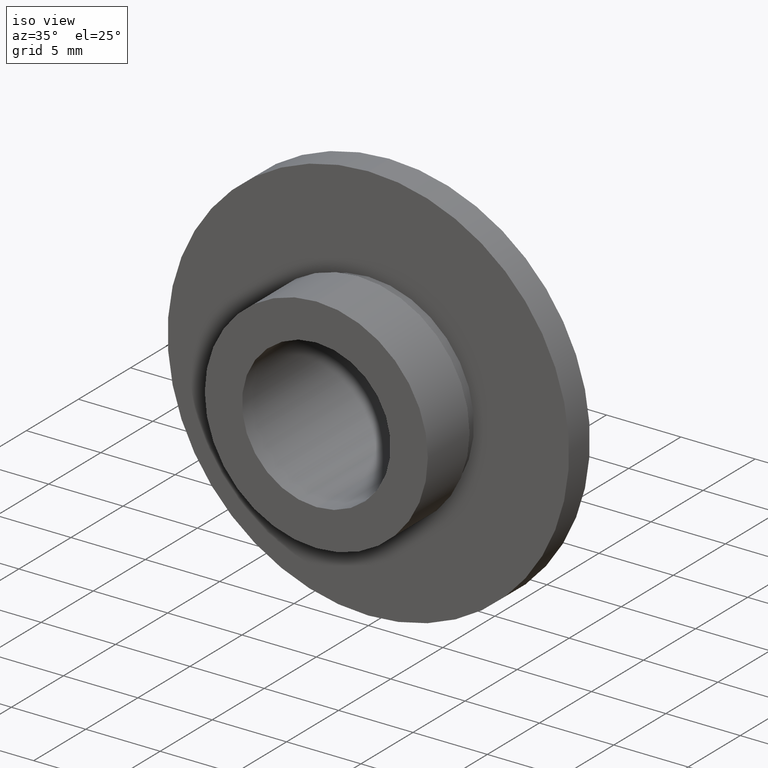
[diagram: clean part render]
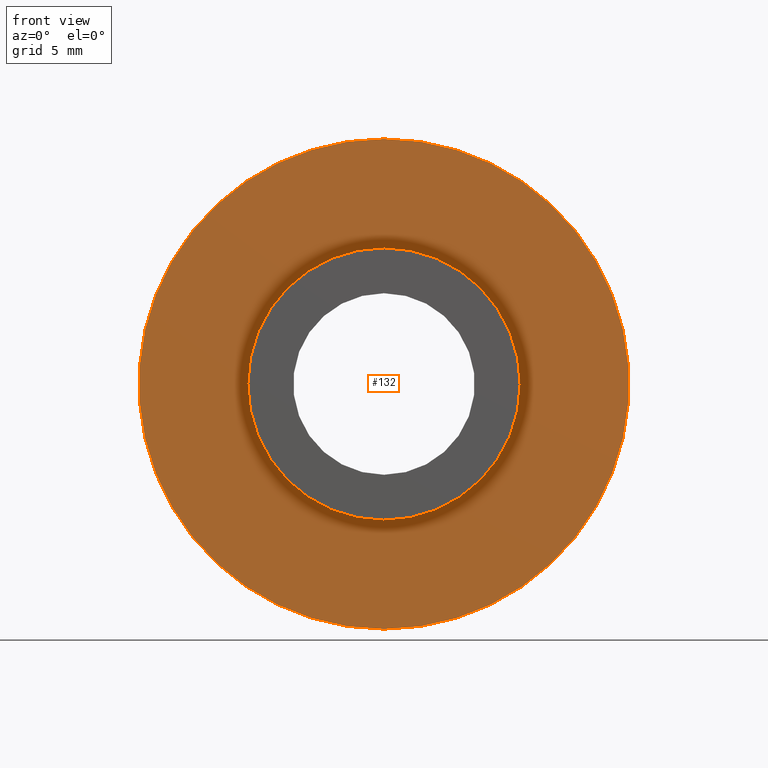
[diagram: tour spotlight — one face highlighted and labeled with its STEP entity id]
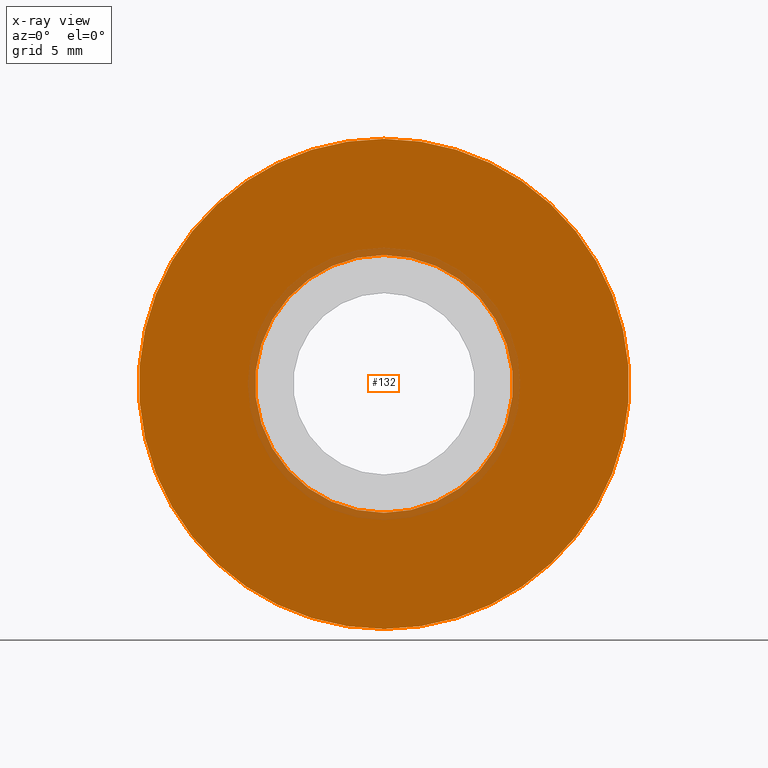
[diagram: x-ray of the same camera — body ghosted, this tour face saturated]
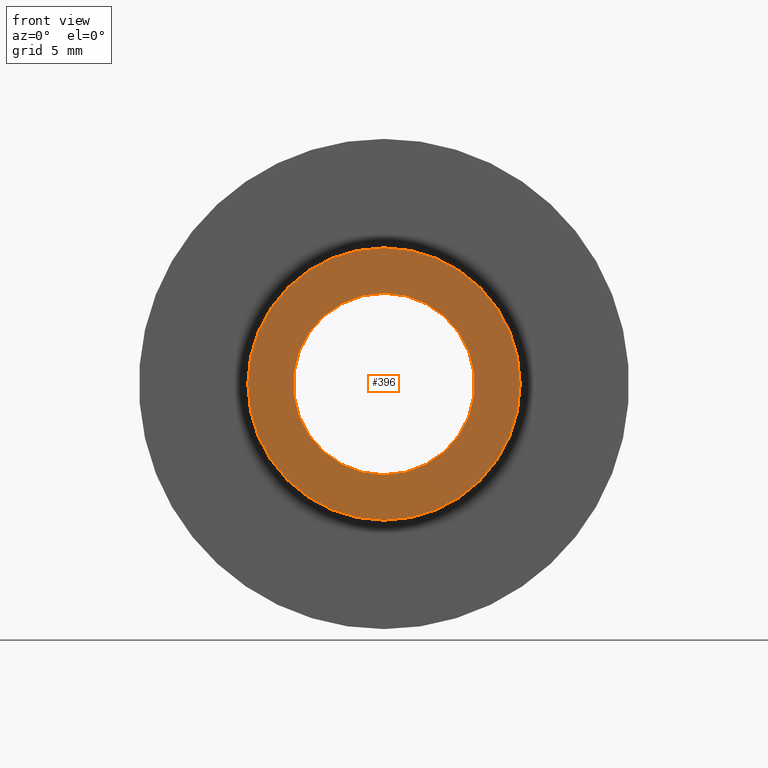
[diagram: tour spotlight — one face highlighted and labeled with its STEP entity id]
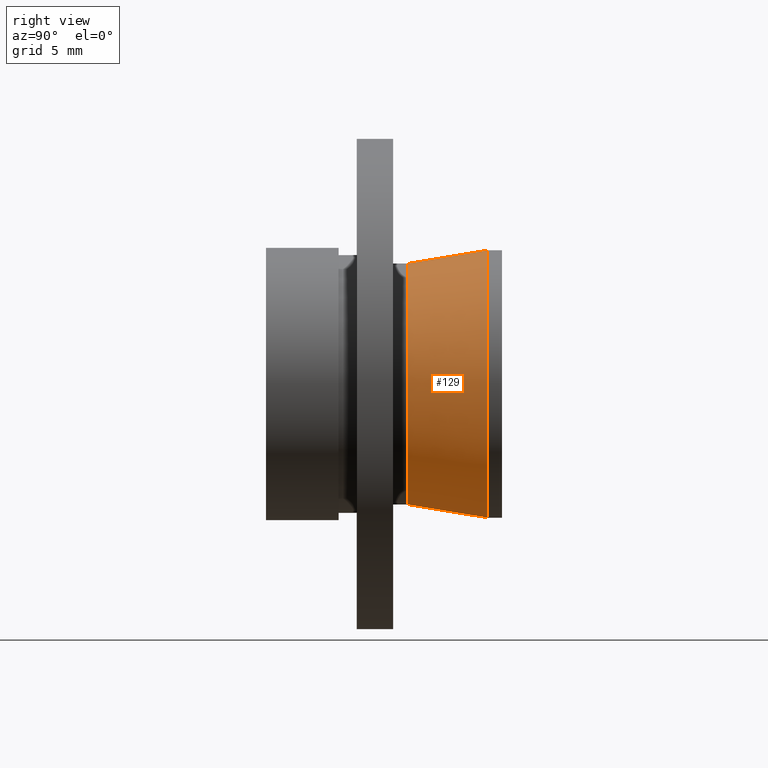
[diagram: tour spotlight — one face highlighted and labeled with its STEP entity id]
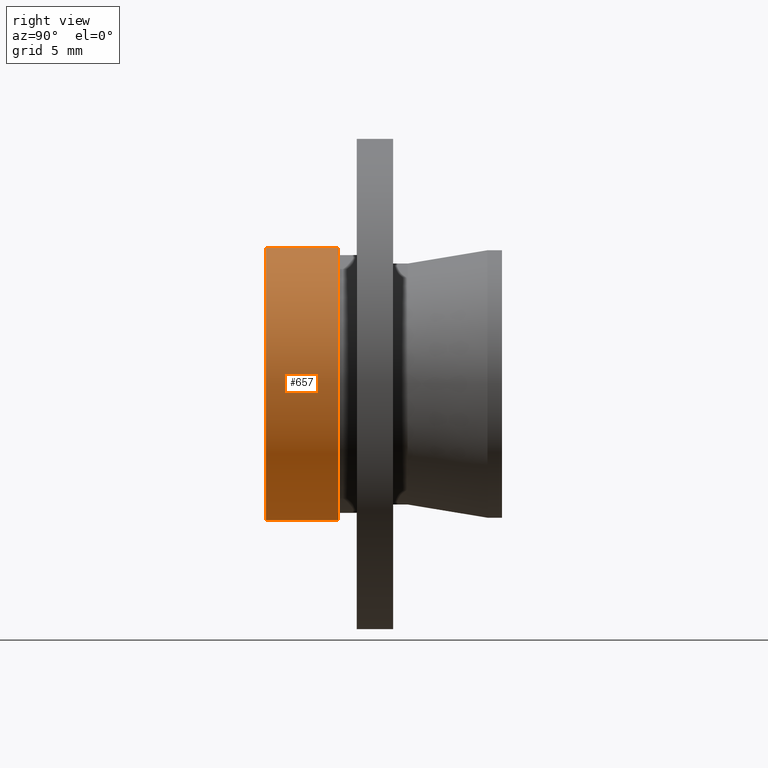
[diagram: tour spotlight — one face highlighted and labeled with its STEP entity id]
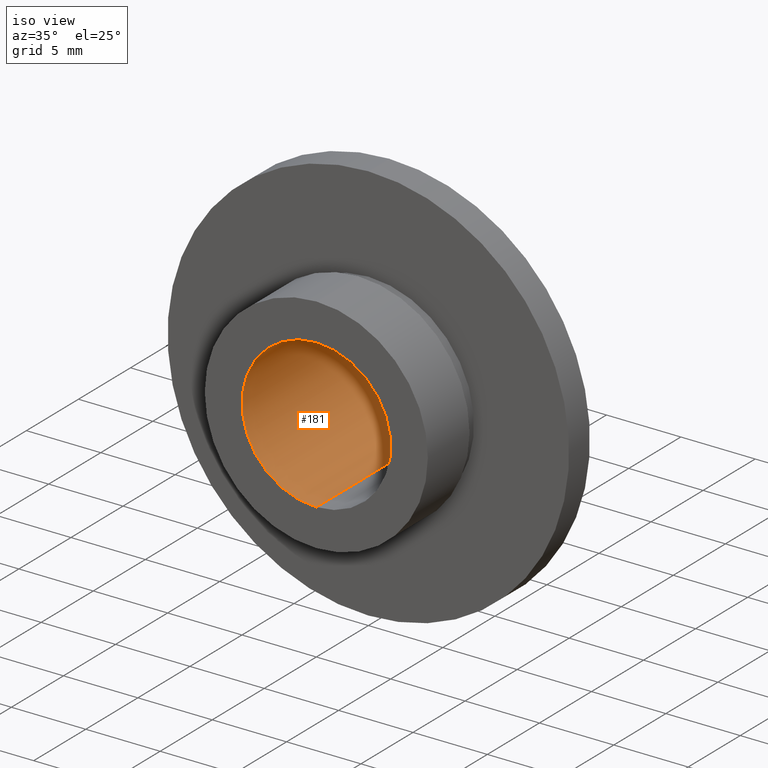
[diagram: tour spotlight — one face highlighted and labeled with its STEP entity id]
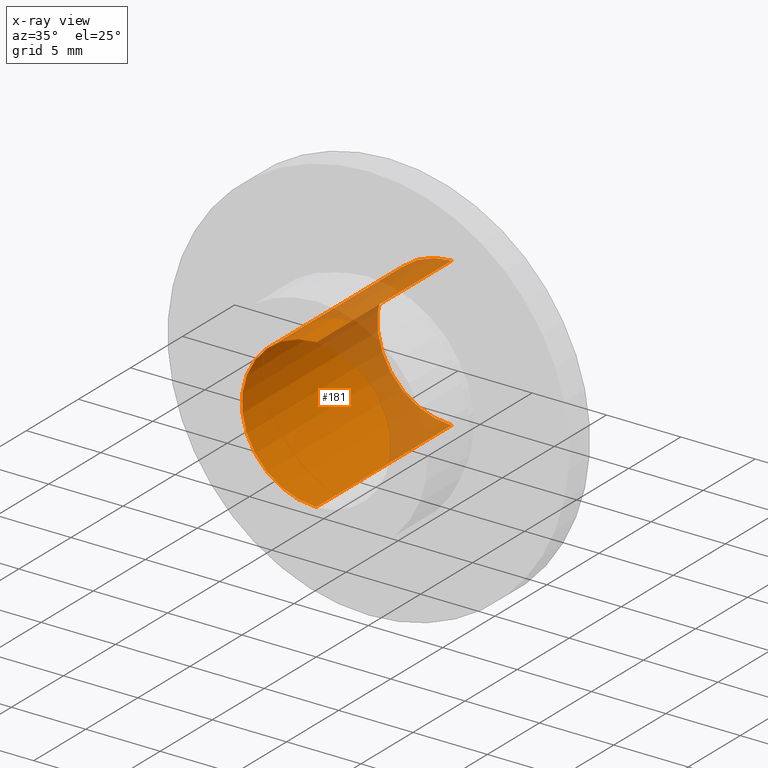
[diagram: x-ray of the same camera — body ghosted, this tour face saturated]
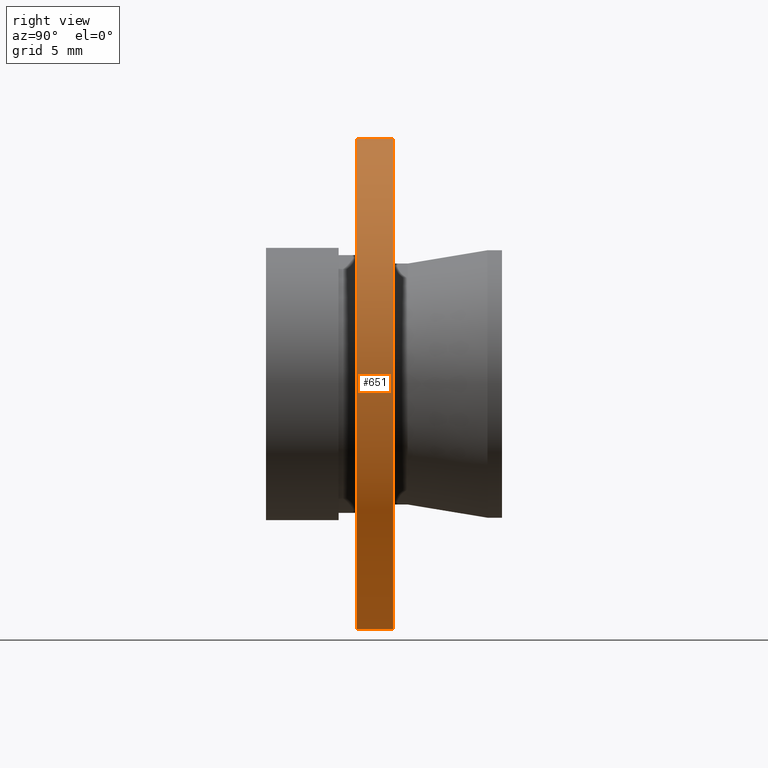
[diagram: tour spotlight — one face highlighted and labeled with its STEP entity id]
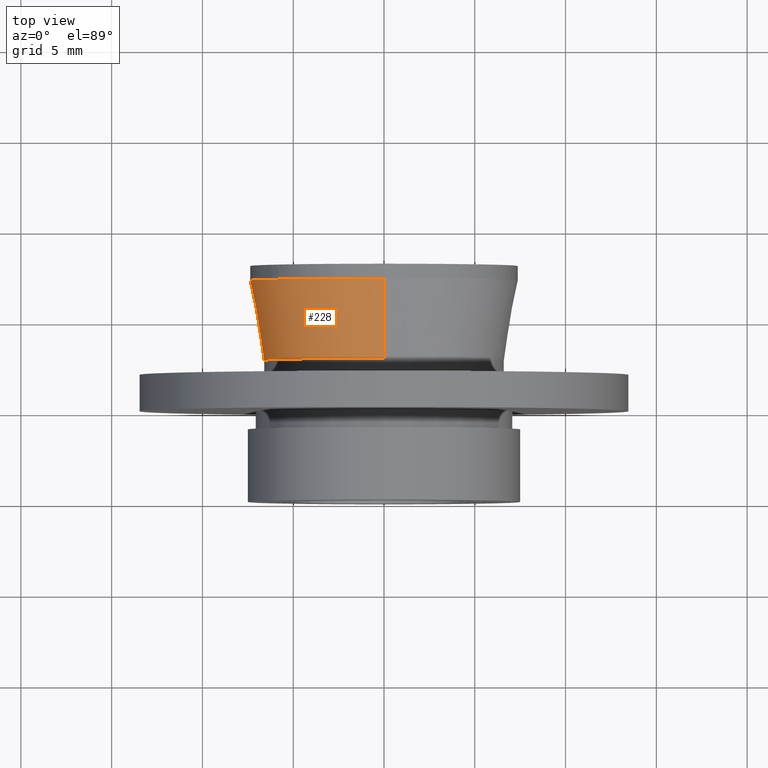
[diagram: tour spotlight — one face highlighted and labeled with its STEP entity id]
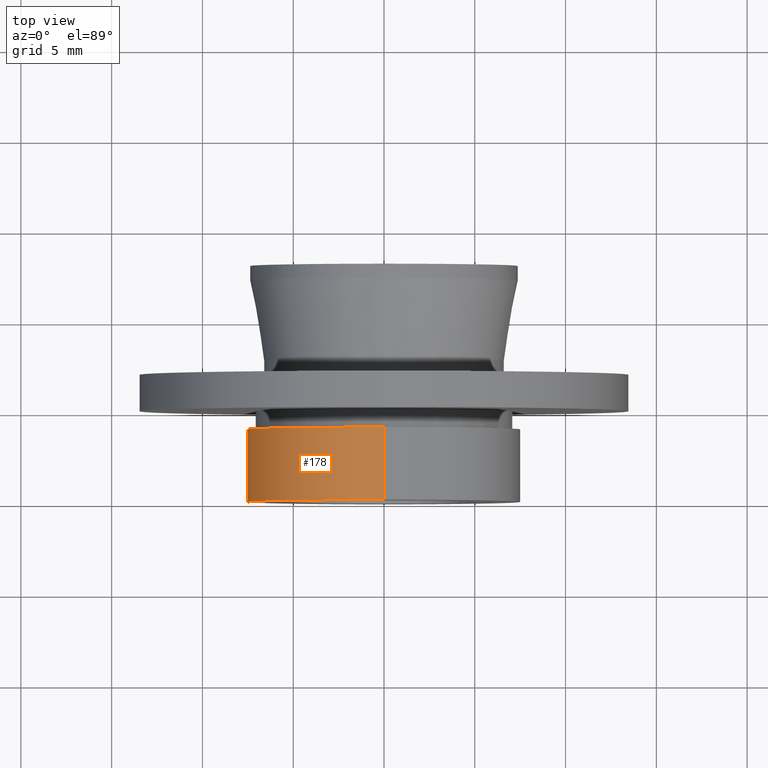
[diagram: tour spotlight — one face highlighted and labeled with its STEP entity id]
A machine part: a face-by-face anatomy tour. The part has 19 B-rep faces; the first image is the clean iso view, then the 8 largest visible faces are spotlighted one at a time (largest first), each with its STEP entity span.

Face 1 — front view, entity #132. An x-ray twin of the same camera follows (body ghosted, this face saturated) — the face is partly hidden behind the body. In plain terms, the highlighted planar face has unit normal (0, 1, 0).
Definition (entity closure, byte-faithful):
#17 = ORIENTED_EDGE ( 'NONE', *, *, #444, .F. ) ;
#35 = CIRCLE ( 'NONE', #665, 13.49999999999999800 ) ;
#43 = DIRECTION ( 'NONE',  ( 0.0000000000000000000, 0.0000000000000000000, -1.000000000000000000 ) ) ;
#53 = EDGE_CURVE ( 'NONE', #414, #336, #608, .T. ) ;
#112 = PLANE ( 'NONE',  #229 ) ;
#124 = CARTESIAN_POINT ( 'NONE',  ( 0.0000000000000000000, 4.999999999999996400, -7.099999999999998800 ) ) ;
#132 = ADVANCED_FACE ( 'NONE', ( #155, #211 ), #112, .F. ) ;
#147 = CARTESIAN_POINT ( 'NONE',  ( 0.0000000000000000000, 4.999999999999999100, -13.49999999999999800 ) ) ;
#155 = FACE_BOUND ( 'NONE', #397, .T. ) ;
#158 = DIRECTION ( 'NONE',  ( -0.0000000000000000000, -1.000000000000000000, -0.0000000000000000000 ) ) ;
#186 = DIRECTION ( 'NONE',  ( -0.0000000000000000000, -1.000000000000000000, -0.0000000000000000000 ) ) ;
#196 = ORIENTED_EDGE ( 'NONE', *, *, #543, .T. ) ;
#211 = FACE_OUTER_BOUND ( 'NONE', #370, .T. ) ;
#213 = AXIS2_PLACEMENT_3D ( 'NONE', #420, #158, #635 ) ;
#229 = AXIS2_PLACEMENT_3D ( 'NONE', #526, #631, #373 ) ;
#242 = CARTESIAN_POINT ( 'NONE',  ( 0.0000000000000000000, 4.999999999999999100, 0.0000000000000000000 ) ) ;
#253 = CARTESIAN_POINT ( 'NONE',  ( 0.0000000000000000000, 4.999999999999999100, 0.0000000000000000000 ) ) ;
#322 = ORIENTED_EDGE ( 'NONE', *, *, #475, .T. ) ;
#336 = VERTEX_POINT ( 'NONE', #556 ) ;
#341 = CARTESIAN_POINT ( 'NONE',  ( 0.0000000000000000000, 4.999999999999996400, 0.0000000000000000000 ) ) ;
#353 = VERTEX_POINT ( 'NONE', #393 ) ;
#370 = EDGE_LOOP ( 'NONE', ( #322, #196 ) ) ;
#373 = DIRECTION ( 'NONE',  ( 0.0000000000000000000, -0.0000000000000000000, 1.000000000000000000 ) ) ;
#393 = CARTESIAN_POINT ( 'NONE',  ( 1.653273178848926700E-015, 4.999999999999999100, 13.49999999999999800 ) ) ;
#397 = EDGE_LOOP ( 'NONE', ( #479, #17 ) ) ;
#414 = VERTEX_POINT ( 'NONE', #124 ) ;
#420 = CARTESIAN_POINT ( 'NONE',  ( 0.0000000000000000000, 4.999999999999996400, 0.0000000000000000000 ) ) ;
#444 = EDGE_CURVE ( 'NONE', #336, #414, #563, .T. ) ;
#448 = VERTEX_POINT ( 'NONE', #147 ) ;
#475 = EDGE_CURVE ( 'NONE', #448, #353, #607, .T. ) ;
#479 = ORIENTED_EDGE ( 'NONE', *, *, #53, .F. ) ;
#492 = AXIS2_PLACEMENT_3D ( 'NONE', #341, #666, #564 ) ;
#526 = CARTESIAN_POINT ( 'NONE',  ( -13.49999999999999800, 4.999999999999997300, 0.0000000000000000000 ) ) ;
#543 = EDGE_CURVE ( 'NONE', #353, #448, #35, .T. ) ;
#556 = CARTESIAN_POINT ( 'NONE',  ( 8.694992273946205800E-016, 4.999999999999996400, 7.099999999999998800 ) ) ;
#563 = CIRCLE ( 'NONE', #492, 7.099999999999998800 ) ;
#564 = DIRECTION ( 'NONE',  ( 0.0000000000000000000, 0.0000000000000000000, -1.000000000000000000 ) ) ;
#567 = AXIS2_PLACEMENT_3D ( 'NONE', #242, #186, #605 ) ;
#605 = DIRECTION ( 'NONE',  ( 0.0000000000000000000, 0.0000000000000000000, -1.000000000000000000 ) ) ;
#607 = CIRCLE ( 'NONE', #567, 13.49999999999999800 ) ;
#608 = CIRCLE ( 'NONE', #213, 7.099999999999998800 ) ;
#631 = DIRECTION ( 'NONE',  ( 0.0000000000000000000, 1.000000000000000000, 0.0000000000000000000 ) ) ;
#635 = DIRECTION ( 'NONE',  ( 0.0000000000000000000, 0.0000000000000000000, -1.000000000000000000 ) ) ;
#662 = DIRECTION ( 'NONE',  ( -0.0000000000000000000, -1.000000000000000000, -0.0000000000000000000 ) ) ;
#665 = AXIS2_PLACEMENT_3D ( 'NONE', #253, #662, #43 ) ;
#666 = DIRECTION ( 'NONE',  ( -0.0000000000000000000, -1.000000000000000000, -0.0000000000000000000 ) ) ;

Face 2 — front view, entity #396. In plain terms, the highlighted planar face has unit normal (0, 1, 0).
Definition (entity closure, byte-faithful):
#6 = CARTESIAN_POINT ( 'NONE',  ( 0.0000000000000000000, 0.0000000000000000000, 0.0000000000000000000 ) ) ;
#11 = VERTEX_POINT ( 'NONE', #205 ) ;
#20 = EDGE_CURVE ( 'NONE', #11, #654, #90, .T. ) ;
#25 = DIRECTION ( 'NONE',  ( 0.0000000000000000000, -0.0000000000000000000, 1.000000000000000000 ) ) ;
#52 = DIRECTION ( 'NONE',  ( 0.0000000000000000000, 0.0000000000000000000, -1.000000000000000000 ) ) ;
#75 = CIRCLE ( 'NONE', #534, 5.000000000000000000 ) ;
#78 = CARTESIAN_POINT ( 'NONE',  ( 0.0000000000000000000, 2.155083489784135800E-015, 0.0000000000000000000 ) ) ;
#85 = ORIENTED_EDGE ( 'NONE', *, *, #508, .F. ) ;
#87 = CARTESIAN_POINT ( 'NONE',  ( 0.0000000000000000000, 2.155083489784135800E-015, 0.0000000000000000000 ) ) ;
#90 = CIRCLE ( 'NONE', #146, 7.499999999999998200 ) ;
#96 = EDGE_LOOP ( 'NONE', ( #395, #548 ) ) ;
#105 = DIRECTION ( 'NONE',  ( 0.0000000000000000000, 0.0000000000000000000, -1.000000000000000000 ) ) ;
#128 = CIRCLE ( 'NONE', #163, 5.000000000000000000 ) ;
#135 = ORIENTED_EDGE ( 'NONE', *, *, #432, .F. ) ;
#146 = AXIS2_PLACEMENT_3D ( 'NONE', #6, #352, #52 ) ;
#149 = DIRECTION ( 'NONE',  ( -0.0000000000000000000, -1.000000000000000000, -0.0000000000000000000 ) ) ;
#163 = AXIS2_PLACEMENT_3D ( 'NONE', #87, #149, #506 ) ;
#173 = PLANE ( 'NONE',  #350 ) ;
#184 = DIRECTION ( 'NONE',  ( 0.0000000000000000000, 1.000000000000000000, 0.0000000000000000000 ) ) ;
#189 = CARTESIAN_POINT ( 'NONE',  ( 0.0000000000000000000, 2.155083489784135800E-015, -5.000000000000000000 ) ) ;
#191 = AXIS2_PLACEMENT_3D ( 'NONE', #418, #208, #105 ) ;
#205 = CARTESIAN_POINT ( 'NONE',  ( 9.184850993605146000E-016, 0.0000000000000000000, 7.499999999999998200 ) ) ;
#208 = DIRECTION ( 'NONE',  ( -0.0000000000000000000, -1.000000000000000000, -0.0000000000000000000 ) ) ;
#224 = CARTESIAN_POINT ( 'NONE',  ( -7.499999999999998200, 1.077541744892067900E-015, 0.0000000000000000000 ) ) ;
#279 = DIRECTION ( 'NONE',  ( 0.0000000000000000000, 0.0000000000000000000, -1.000000000000000000 ) ) ;
#350 = AXIS2_PLACEMENT_3D ( 'NONE', #224, #184, #25 ) ;
#352 = DIRECTION ( 'NONE',  ( -0.0000000000000000000, -1.000000000000000000, -0.0000000000000000000 ) ) ;
#358 = EDGE_LOOP ( 'NONE', ( #135, #85 ) ) ;
#361 = FACE_OUTER_BOUND ( 'NONE', #96, .T. ) ;
#389 = VERTEX_POINT ( 'NONE', #495 ) ;
#395 = ORIENTED_EDGE ( 'NONE', *, *, #577, .T. ) ;
#396 = ADVANCED_FACE ( 'NONE', ( #399, #361 ), #173, .F. ) ;
#399 = FACE_BOUND ( 'NONE', #358, .T. ) ;
#418 = CARTESIAN_POINT ( 'NONE',  ( 0.0000000000000000000, 0.0000000000000000000, 0.0000000000000000000 ) ) ;
#432 = EDGE_CURVE ( 'NONE', #466, #389, #75, .T. ) ;
#466 = VERTEX_POINT ( 'NONE', #189 ) ;
#495 = CARTESIAN_POINT ( 'NONE',  ( 6.123233995736766300E-016, 2.155083489784135800E-015, 5.000000000000000000 ) ) ;
#506 = DIRECTION ( 'NONE',  ( 0.0000000000000000000, 0.0000000000000000000, -1.000000000000000000 ) ) ;
#508 = EDGE_CURVE ( 'NONE', #389, #466, #128, .T. ) ;
#518 = CARTESIAN_POINT ( 'NONE',  ( 0.0000000000000000000, 0.0000000000000000000, -7.499999999999998200 ) ) ;
#534 = AXIS2_PLACEMENT_3D ( 'NONE', #78, #593, #279 ) ;
#546 = CIRCLE ( 'NONE', #191, 7.499999999999998200 ) ;
#548 = ORIENTED_EDGE ( 'NONE', *, *, #20, .T. ) ;
#577 = EDGE_CURVE ( 'NONE', #654, #11, #546, .T. ) ;
#593 = DIRECTION ( 'NONE',  ( -0.0000000000000000000, -1.000000000000000000, -0.0000000000000000000 ) ) ;
#654 = VERTEX_POINT ( 'NONE', #518 ) ;

Face 3 — right view, entity #129. In plain terms, the highlighted conical surface has half-angle 9.42 deg.
Definition (entity closure, byte-faithful):
#5 = FACE_OUTER_BOUND ( 'NONE', #606, .T. ) ;
#16 = DIRECTION ( 'NONE',  ( -0.0000000000000000000, -1.000000000000000000, -0.0000000000000000000 ) ) ;
#30 = CARTESIAN_POINT ( 'NONE',  ( 9.019523675720257200E-016, 12.20000000000000100, -7.365000000000001100 ) ) ;
#56 = ORIENTED_EDGE ( 'NONE', *, *, #408, .T. ) ;
#57 = CARTESIAN_POINT ( 'NONE',  ( 0.0000000000000000000, 12.20000000000000100, 7.365000000000001100 ) ) ;
#66 = CARTESIAN_POINT ( 'NONE',  ( 0.0000000000000000000, 12.20000000000000100, 0.0000000000000000000 ) ) ;
#97 = CIRCLE ( 'NONE', #295, 6.635000000000000700 ) ;
#109 = ORIENTED_EDGE ( 'NONE', *, *, #218, .T. ) ;
#127 = ORIENTED_EDGE ( 'NONE', *, *, #615, .F. ) ;
#129 = ADVANCED_FACE ( 'NONE', ( #5 ), #278, .T. ) ;
#138 = CARTESIAN_POINT ( 'NONE',  ( 0.0000000000000000000, 12.20000000000000100, -7.365000000000001100 ) ) ;
#166 = CARTESIAN_POINT ( 'NONE',  ( 0.0000000000000000000, 12.20000000000000100, 0.0000000000000000000 ) ) ;
#190 = CIRCLE ( 'NONE', #270, 7.365000000000001100 ) ;
#218 = EDGE_CURVE ( 'NONE', #313, #562, #190, .T. ) ;
#254 = DIRECTION ( 'NONE',  ( -0.0000000000000000000, -1.000000000000000000, -0.0000000000000000000 ) ) ;
#259 = VECTOR ( 'NONE', #642, 1000.000000000000000 ) ;
#270 = AXIS2_PLACEMENT_3D ( 'NONE', #66, #16, #421 ) ;
#278 = CONICAL_SURFACE ( 'NONE', #442, 7.365000000000001100, 0.1644114862470267300 ) ;
#283 = LINE ( 'NONE', #30, #259 ) ;
#295 = AXIS2_PLACEMENT_3D ( 'NONE', #355, #254, #462 ) ;
#313 = VERTEX_POINT ( 'NONE', #138 ) ;
#355 = CARTESIAN_POINT ( 'NONE',  ( 0.0000000000000000000, 7.800000000000000700, 0.0000000000000000000 ) ) ;
#408 = EDGE_CURVE ( 'NONE', #617, #313, #283, .T. ) ;
#412 = CARTESIAN_POINT ( 'NONE',  ( 8.572527594031473200E-016, 7.800000000000000700, -6.635000000000000700 ) ) ;
#419 = DIRECTION ( 'NONE',  ( 0.0000000000000000000, 0.9865148492742904500, 0.1636717818114165100 ) ) ;
#421 = DIRECTION ( 'NONE',  ( 0.0000000000000000000, 0.0000000000000000000, -1.000000000000000000 ) ) ;
#442 = AXIS2_PLACEMENT_3D ( 'NONE', #166, #588, #587 ) ;
#454 = CARTESIAN_POINT ( 'NONE',  ( 0.0000000000000000000, 7.800000000000000700, 6.635000000000000700 ) ) ;
#459 = VERTEX_POINT ( 'NONE', #454 ) ;
#462 = DIRECTION ( 'NONE',  ( 0.0000000000000000000, 0.0000000000000000000, -1.000000000000000000 ) ) ;
#505 = CARTESIAN_POINT ( 'NONE',  ( 9.019523675720259200E-016, 12.20000000000000100, 7.365000000000002000 ) ) ;
#507 = VECTOR ( 'NONE', #419, 1000.000000000000000 ) ;
#530 = ORIENTED_EDGE ( 'NONE', *, *, #586, .F. ) ;
#562 = VERTEX_POINT ( 'NONE', #505 ) ;
#586 = EDGE_CURVE ( 'NONE', #459, #562, #653, .T. ) ;
#587 = DIRECTION ( 'NONE',  ( 0.0000000000000000000, 0.0000000000000000000, 1.000000000000000000 ) ) ;
#588 = DIRECTION ( 'NONE',  ( 0.0000000000000000000, 1.000000000000000000, 0.0000000000000000000 ) ) ;
#606 = EDGE_LOOP ( 'NONE', ( #127, #56, #109, #530 ) ) ;
#615 = EDGE_CURVE ( 'NONE', #617, #459, #97, .T. ) ;
#617 = VERTEX_POINT ( 'NONE', #412 ) ;
#642 = DIRECTION ( 'NONE',  ( 2.004401237060952100E-017, 0.9865148492742904500, -0.1636717818114165100 ) ) ;
#653 = LINE ( 'NONE', #57, #507 ) ;

Face 4 — right view, entity #657. In plain terms, the highlighted cylindrical surface (partial cylindrical patch) has radius 7.5 mm, axis along (-0, -1, -0).
Definition (entity closure, byte-faithful):
#3 = FACE_OUTER_BOUND ( 'NONE', #306, .T. ) ;
#11 = VERTEX_POINT ( 'NONE', #205 ) ;
#14 = EDGE_CURVE ( 'NONE', #282, #118, #126, .T. ) ;
#40 = VECTOR ( 'NONE', #403, 1000.000000000000000 ) ;
#47 = LINE ( 'NONE', #503, #171 ) ;
#105 = DIRECTION ( 'NONE',  ( 0.0000000000000000000, 0.0000000000000000000, -1.000000000000000000 ) ) ;
#115 = AXIS2_PLACEMENT_3D ( 'NONE', #461, #515, #193 ) ;
#118 = VERTEX_POINT ( 'NONE', #427 ) ;
#126 = CIRCLE ( 'NONE', #115, 7.499999999999999100 ) ;
#171 = VECTOR ( 'NONE', #401, 1000.000000000000000 ) ;
#191 = AXIS2_PLACEMENT_3D ( 'NONE', #418, #208, #105 ) ;
#193 = DIRECTION ( 'NONE',  ( 0.0000000000000000000, 0.0000000000000000000, -1.000000000000000000 ) ) ;
#200 = CARTESIAN_POINT ( 'NONE',  ( 0.0000000000000000000, 0.0000000000000000000, 0.0000000000000000000 ) ) ;
#205 = CARTESIAN_POINT ( 'NONE',  ( 9.184850993605146000E-016, 0.0000000000000000000, 7.499999999999998200 ) ) ;
#207 = ORIENTED_EDGE ( 'NONE', *, *, #14, .T. ) ;
#208 = DIRECTION ( 'NONE',  ( -0.0000000000000000000, -1.000000000000000000, -0.0000000000000000000 ) ) ;
#247 = CARTESIAN_POINT ( 'NONE',  ( 9.184850993605146000E-016, 0.0000000000000000000, 7.499999999999998200 ) ) ;
#282 = VERTEX_POINT ( 'NONE', #366 ) ;
#306 = EDGE_LOOP ( 'NONE', ( #207, #623, #447, #555 ) ) ;
#308 = DIRECTION ( 'NONE',  ( 0.0000000000000000000, 0.0000000000000000000, -1.000000000000000000 ) ) ;
#366 = CARTESIAN_POINT ( 'NONE',  ( 0.0000000000000000000, 3.999999999999996400, -7.499999999999999100 ) ) ;
#401 = DIRECTION ( 'NONE',  ( -0.0000000000000000000, -1.000000000000000000, -0.0000000000000000000 ) ) ;
#403 = DIRECTION ( 'NONE',  ( -0.0000000000000000000, -1.000000000000000000, -0.0000000000000000000 ) ) ;
#418 = CARTESIAN_POINT ( 'NONE',  ( 0.0000000000000000000, 0.0000000000000000000, 0.0000000000000000000 ) ) ;
#427 = CARTESIAN_POINT ( 'NONE',  ( 9.184850993605147900E-016, 3.999999999999996400, 7.500000000000000000 ) ) ;
#447 = ORIENTED_EDGE ( 'NONE', *, *, #577, .F. ) ;
#449 = LINE ( 'NONE', #247, #40 ) ;
#461 = CARTESIAN_POINT ( 'NONE',  ( 0.0000000000000000000, 3.999999999999996400, 0.0000000000000000000 ) ) ;
#494 = EDGE_CURVE ( 'NONE', #282, #654, #47, .T. ) ;
#502 = EDGE_CURVE ( 'NONE', #118, #11, #449, .T. ) ;
#503 = CARTESIAN_POINT ( 'NONE',  ( 0.0000000000000000000, 0.0000000000000000000, -7.499999999999998200 ) ) ;
#515 = DIRECTION ( 'NONE',  ( -0.0000000000000000000, -1.000000000000000000, -0.0000000000000000000 ) ) ;
#518 = CARTESIAN_POINT ( 'NONE',  ( 0.0000000000000000000, 0.0000000000000000000, -7.499999999999998200 ) ) ;
#546 = CIRCLE ( 'NONE', #191, 7.499999999999998200 ) ;
#555 = ORIENTED_EDGE ( 'NONE', *, *, #494, .F. ) ;
#560 = AXIS2_PLACEMENT_3D ( 'NONE', #200, #572, #308 ) ;
#572 = DIRECTION ( 'NONE',  ( -0.0000000000000000000, -1.000000000000000000, -0.0000000000000000000 ) ) ;
#577 = EDGE_CURVE ( 'NONE', #654, #11, #546, .T. ) ;
#623 = ORIENTED_EDGE ( 'NONE', *, *, #502, .T. ) ;
#624 = CYLINDRICAL_SURFACE ( 'NONE', #560, 7.499999999999998200 ) ;
#654 = VERTEX_POINT ( 'NONE', #518 ) ;
#657 = ADVANCED_FACE ( 'NONE', ( #3 ), #624, .T. ) ;

Face 5 — iso view, entity #181. An x-ray twin of the same camera follows (body ghosted, this face saturated) — the face is partly hidden behind the body. In plain terms, the highlighted cylindrical surface (partial cylindrical patch) has radius 5 mm, axis along (-0, -1, -0).
Definition (entity closure, byte-faithful):
#4 = ORIENTED_EDGE ( 'NONE', *, *, #476, .F. ) ;
#18 = VECTOR ( 'NONE', #60, 1000.000000000000000 ) ;
#26 = ORIENTED_EDGE ( 'NONE', *, *, #323, .F. ) ;
#60 = DIRECTION ( 'NONE',  ( -0.0000000000000000000, -1.000000000000000000, -0.0000000000000000000 ) ) ;
#69 = AXIS2_PLACEMENT_3D ( 'NONE', #575, #72, #264 ) ;
#72 = DIRECTION ( 'NONE',  ( -0.0000000000000000000, -1.000000000000000000, -0.0000000000000000000 ) ) ;
#76 = AXIS2_PLACEMENT_3D ( 'NONE', #433, #493, #658 ) ;
#87 = CARTESIAN_POINT ( 'NONE',  ( 0.0000000000000000000, 2.155083489784135800E-015, 0.0000000000000000000 ) ) ;
#111 = CARTESIAN_POINT ( 'NONE',  ( 6.123233995736765300E-016, 13.00000000000000200, 4.999999999999999100 ) ) ;
#128 = CIRCLE ( 'NONE', #163, 5.000000000000000000 ) ;
#141 = EDGE_LOOP ( 'NONE', ( #26, #303, #209, #4 ) ) ;
#142 = CIRCLE ( 'NONE', #76, 4.999999999999999100 ) ;
#144 = CARTESIAN_POINT ( 'NONE',  ( 0.0000000000000000000, 0.0000000000000000000, -4.999999999999999100 ) ) ;
#149 = DIRECTION ( 'NONE',  ( -0.0000000000000000000, -1.000000000000000000, -0.0000000000000000000 ) ) ;
#153 = VERTEX_POINT ( 'NONE', #316 ) ;
#163 = AXIS2_PLACEMENT_3D ( 'NONE', #87, #149, #506 ) ;
#181 = ADVANCED_FACE ( 'NONE', ( #390 ), #559, .F. ) ;
#189 = CARTESIAN_POINT ( 'NONE',  ( 0.0000000000000000000, 2.155083489784135800E-015, -5.000000000000000000 ) ) ;
#209 = ORIENTED_EDGE ( 'NONE', *, *, #508, .T. ) ;
#264 = DIRECTION ( 'NONE',  ( 0.0000000000000000000, 0.0000000000000000000, -1.000000000000000000 ) ) ;
#303 = ORIENTED_EDGE ( 'NONE', *, *, #609, .T. ) ;
#314 = LINE ( 'NONE', #144, #398 ) ;
#316 = CARTESIAN_POINT ( 'NONE',  ( 0.0000000000000000000, 13.00000000000000200, -4.999999999999999100 ) ) ;
#323 = EDGE_CURVE ( 'NONE', #644, #153, #142, .T. ) ;
#389 = VERTEX_POINT ( 'NONE', #495 ) ;
#390 = FACE_OUTER_BOUND ( 'NONE', #141, .T. ) ;
#398 = VECTOR ( 'NONE', #664, 1000.000000000000000 ) ;
#433 = CARTESIAN_POINT ( 'NONE',  ( 0.0000000000000000000, 13.00000000000000200, 0.0000000000000000000 ) ) ;
#466 = VERTEX_POINT ( 'NONE', #189 ) ;
#476 = EDGE_CURVE ( 'NONE', #153, #466, #314, .T. ) ;
#493 = DIRECTION ( 'NONE',  ( -0.0000000000000000000, -1.000000000000000000, -0.0000000000000000000 ) ) ;
#495 = CARTESIAN_POINT ( 'NONE',  ( 6.123233995736766300E-016, 2.155083489784135800E-015, 5.000000000000000000 ) ) ;
#506 = DIRECTION ( 'NONE',  ( 0.0000000000000000000, 0.0000000000000000000, -1.000000000000000000 ) ) ;
#508 = EDGE_CURVE ( 'NONE', #389, #466, #128, .T. ) ;
#512 = CARTESIAN_POINT ( 'NONE',  ( 6.123233995736765300E-016, 0.0000000000000000000, 4.999999999999999100 ) ) ;
#559 = CYLINDRICAL_SURFACE ( 'NONE', #69, 4.999999999999999100 ) ;
#575 = CARTESIAN_POINT ( 'NONE',  ( 0.0000000000000000000, 0.0000000000000000000, 0.0000000000000000000 ) ) ;
#609 = EDGE_CURVE ( 'NONE', #644, #389, #634, .T. ) ;
#634 = LINE ( 'NONE', #512, #18 ) ;
#644 = VERTEX_POINT ( 'NONE', #111 ) ;
#658 = DIRECTION ( 'NONE',  ( 0.0000000000000000000, 0.0000000000000000000, -1.000000000000000000 ) ) ;
#664 = DIRECTION ( 'NONE',  ( -0.0000000000000000000, -1.000000000000000000, -0.0000000000000000000 ) ) ;

Face 6 — right view, entity #651. In plain terms, the highlighted cylindrical surface (partial cylindrical patch) has radius 13.5 mm, axis along (-0, -1, -0).
Definition (entity closure, byte-faithful):
#10 = VERTEX_POINT ( 'NONE', #151 ) ;
#13 = DIRECTION ( 'NONE',  ( 0.0000000000000000000, 0.0000000000000000000, -1.000000000000000000 ) ) ;
#54 = CARTESIAN_POINT ( 'NONE',  ( 0.0000000000000000000, 0.0000000000000000000, 0.0000000000000000000 ) ) ;
#59 = CARTESIAN_POINT ( 'NONE',  ( 0.0000000000000000000, 6.999999999999999100, 0.0000000000000000000 ) ) ;
#64 = AXIS2_PLACEMENT_3D ( 'NONE', #59, #305, #13 ) ;
#107 = ORIENTED_EDGE ( 'NONE', *, *, #365, .T. ) ;
#130 = VECTOR ( 'NONE', #169, 1000.000000000000000 ) ;
#147 = CARTESIAN_POINT ( 'NONE',  ( 0.0000000000000000000, 4.999999999999999100, -13.49999999999999800 ) ) ;
#148 = CIRCLE ( 'NONE', #64, 13.49999999999999800 ) ;
#151 = CARTESIAN_POINT ( 'NONE',  ( 0.0000000000000000000, 6.999999999999999100, -13.49999999999999800 ) ) ;
#169 = DIRECTION ( 'NONE',  ( -0.0000000000000000000, -1.000000000000000000, -0.0000000000000000000 ) ) ;
#186 = DIRECTION ( 'NONE',  ( -0.0000000000000000000, -1.000000000000000000, -0.0000000000000000000 ) ) ;
#194 = DIRECTION ( 'NONE',  ( -0.0000000000000000000, -1.000000000000000000, -0.0000000000000000000 ) ) ;
#216 = VERTEX_POINT ( 'NONE', #626 ) ;
#223 = CARTESIAN_POINT ( 'NONE',  ( 0.0000000000000000000, 0.0000000000000000000, -13.49999999999999800 ) ) ;
#226 = LINE ( 'NONE', #436, #130 ) ;
#233 = ORIENTED_EDGE ( 'NONE', *, *, #272, .F. ) ;
#242 = CARTESIAN_POINT ( 'NONE',  ( 0.0000000000000000000, 4.999999999999999100, 0.0000000000000000000 ) ) ;
#252 = FACE_OUTER_BOUND ( 'NONE', #539, .T. ) ;
#262 = DIRECTION ( 'NONE',  ( 0.0000000000000000000, 0.0000000000000000000, -1.000000000000000000 ) ) ;
#272 = EDGE_CURVE ( 'NONE', #10, #448, #597, .T. ) ;
#289 = ORIENTED_EDGE ( 'NONE', *, *, #475, .F. ) ;
#305 = DIRECTION ( 'NONE',  ( -0.0000000000000000000, -1.000000000000000000, -0.0000000000000000000 ) ) ;
#353 = VERTEX_POINT ( 'NONE', #393 ) ;
#365 = EDGE_CURVE ( 'NONE', #216, #353, #226, .T. ) ;
#388 = CYLINDRICAL_SURFACE ( 'NONE', #524, 13.49999999999999800 ) ;
#393 = CARTESIAN_POINT ( 'NONE',  ( 1.653273178848926700E-015, 4.999999999999999100, 13.49999999999999800 ) ) ;
#436 = CARTESIAN_POINT ( 'NONE',  ( 1.653273178848926700E-015, 0.0000000000000000000, 13.49999999999999800 ) ) ;
#448 = VERTEX_POINT ( 'NONE', #147 ) ;
#453 = VECTOR ( 'NONE', #537, 1000.000000000000000 ) ;
#475 = EDGE_CURVE ( 'NONE', #448, #353, #607, .T. ) ;
#524 = AXIS2_PLACEMENT_3D ( 'NONE', #54, #194, #262 ) ;
#537 = DIRECTION ( 'NONE',  ( -0.0000000000000000000, -1.000000000000000000, -0.0000000000000000000 ) ) ;
#539 = EDGE_LOOP ( 'NONE', ( #540, #107, #289, #233 ) ) ;
#540 = ORIENTED_EDGE ( 'NONE', *, *, #551, .T. ) ;
#551 = EDGE_CURVE ( 'NONE', #10, #216, #148, .T. ) ;
#567 = AXIS2_PLACEMENT_3D ( 'NONE', #242, #186, #605 ) ;
#597 = LINE ( 'NONE', #223, #453 ) ;
#605 = DIRECTION ( 'NONE',  ( 0.0000000000000000000, 0.0000000000000000000, -1.000000000000000000 ) ) ;
#607 = CIRCLE ( 'NONE', #567, 13.49999999999999800 ) ;
#626 = CARTESIAN_POINT ( 'NONE',  ( 1.653273178848926700E-015, 6.999999999999999100, 13.49999999999999800 ) ) ;
#651 = ADVANCED_FACE ( 'NONE', ( #252 ), #388, .T. ) ;

Face 7 — top view, entity #228. In plain terms, the highlighted conical surface has half-angle 9.42 deg.
Definition (entity closure, byte-faithful):
#2 = ORIENTED_EDGE ( 'NONE', *, *, #407, .F. ) ;
#30 = CARTESIAN_POINT ( 'NONE',  ( 9.019523675720257200E-016, 12.20000000000000100, -7.365000000000001100 ) ) ;
#57 = CARTESIAN_POINT ( 'NONE',  ( 0.0000000000000000000, 12.20000000000000100, 7.365000000000001100 ) ) ;
#67 = FACE_OUTER_BOUND ( 'NONE', #182, .T. ) ;
#84 = EDGE_CURVE ( 'NONE', #562, #313, #523, .T. ) ;
#86 = CARTESIAN_POINT ( 'NONE',  ( 0.0000000000000000000, 7.800000000000000700, 0.0000000000000000000 ) ) ;
#94 = AXIS2_PLACEMENT_3D ( 'NONE', #164, #273, #638 ) ;
#138 = CARTESIAN_POINT ( 'NONE',  ( 0.0000000000000000000, 12.20000000000000100, -7.365000000000001100 ) ) ;
#140 = ORIENTED_EDGE ( 'NONE', *, *, #586, .T. ) ;
#164 = CARTESIAN_POINT ( 'NONE',  ( 0.0000000000000000000, 12.20000000000000100, 0.0000000000000000000 ) ) ;
#182 = EDGE_LOOP ( 'NONE', ( #197, #2, #140, #257 ) ) ;
#197 = ORIENTED_EDGE ( 'NONE', *, *, #408, .F. ) ;
#210 = CARTESIAN_POINT ( 'NONE',  ( 0.0000000000000000000, 12.20000000000000100, 0.0000000000000000000 ) ) ;
#228 = ADVANCED_FACE ( 'NONE', ( #67 ), #655, .T. ) ;
#257 = ORIENTED_EDGE ( 'NONE', *, *, #84, .T. ) ;
#259 = VECTOR ( 'NONE', #642, 1000.000000000000000 ) ;
#273 = DIRECTION ( 'NONE',  ( 0.0000000000000000000, 1.000000000000000000, 0.0000000000000000000 ) ) ;
#283 = LINE ( 'NONE', #30, #259 ) ;
#298 = AXIS2_PLACEMENT_3D ( 'NONE', #210, #430, #473 ) ;
#313 = VERTEX_POINT ( 'NONE', #138 ) ;
#377 = DIRECTION ( 'NONE',  ( 0.0000000000000000000, 0.0000000000000000000, -1.000000000000000000 ) ) ;
#391 = AXIS2_PLACEMENT_3D ( 'NONE', #86, #647, #377 ) ;
#407 = EDGE_CURVE ( 'NONE', #459, #617, #440, .T. ) ;
#408 = EDGE_CURVE ( 'NONE', #617, #313, #283, .T. ) ;
#412 = CARTESIAN_POINT ( 'NONE',  ( 8.572527594031473200E-016, 7.800000000000000700, -6.635000000000000700 ) ) ;
#419 = DIRECTION ( 'NONE',  ( 0.0000000000000000000, 0.9865148492742904500, 0.1636717818114165100 ) ) ;
#430 = DIRECTION ( 'NONE',  ( -0.0000000000000000000, -1.000000000000000000, -0.0000000000000000000 ) ) ;
#440 = CIRCLE ( 'NONE', #391, 6.635000000000000700 ) ;
#454 = CARTESIAN_POINT ( 'NONE',  ( 0.0000000000000000000, 7.800000000000000700, 6.635000000000000700 ) ) ;
#459 = VERTEX_POINT ( 'NONE', #454 ) ;
#473 = DIRECTION ( 'NONE',  ( 0.0000000000000000000, 0.0000000000000000000, -1.000000000000000000 ) ) ;
#505 = CARTESIAN_POINT ( 'NONE',  ( 9.019523675720259200E-016, 12.20000000000000100, 7.365000000000002000 ) ) ;
#507 = VECTOR ( 'NONE', #419, 1000.000000000000000 ) ;
#523 = CIRCLE ( 'NONE', #298, 7.365000000000001100 ) ;
#562 = VERTEX_POINT ( 'NONE', #505 ) ;
#586 = EDGE_CURVE ( 'NONE', #459, #562, #653, .T. ) ;
#617 = VERTEX_POINT ( 'NONE', #412 ) ;
#638 = DIRECTION ( 'NONE',  ( 0.0000000000000000000, 0.0000000000000000000, 1.000000000000000000 ) ) ;
#642 = DIRECTION ( 'NONE',  ( 2.004401237060952100E-017, 0.9865148492742904500, -0.1636717818114165100 ) ) ;
#647 = DIRECTION ( 'NONE',  ( -0.0000000000000000000, -1.000000000000000000, -0.0000000000000000000 ) ) ;
#653 = LINE ( 'NONE', #57, #507 ) ;
#655 = CONICAL_SURFACE ( 'NONE', #94, 7.365000000000001100, 0.1644114862470267300 ) ;

Face 8 — top view, entity #178. In plain terms, the highlighted cylindrical surface (partial cylindrical patch) has radius 7.5 mm, axis along (-0, -1, -0).
Definition (entity closure, byte-faithful):
#6 = CARTESIAN_POINT ( 'NONE',  ( 0.0000000000000000000, 0.0000000000000000000, 0.0000000000000000000 ) ) ;
#11 = VERTEX_POINT ( 'NONE', #205 ) ;
#20 = EDGE_CURVE ( 'NONE', #11, #654, #90, .T. ) ;
#22 = CARTESIAN_POINT ( 'NONE',  ( 0.0000000000000000000, 3.999999999999996400, 0.0000000000000000000 ) ) ;
#24 = EDGE_LOOP ( 'NONE', ( #499, #498, #435, #170 ) ) ;
#40 = VECTOR ( 'NONE', #403, 1000.000000000000000 ) ;
#47 = LINE ( 'NONE', #503, #171 ) ;
#48 = EDGE_CURVE ( 'NONE', #118, #282, #110, .T. ) ;
#52 = DIRECTION ( 'NONE',  ( 0.0000000000000000000, 0.0000000000000000000, -1.000000000000000000 ) ) ;
#90 = CIRCLE ( 'NONE', #146, 7.499999999999998200 ) ;
#110 = CIRCLE ( 'NONE', #649, 7.499999999999999100 ) ;
#118 = VERTEX_POINT ( 'NONE', #427 ) ;
#120 = DIRECTION ( 'NONE',  ( -0.0000000000000000000, -1.000000000000000000, -0.0000000000000000000 ) ) ;
#146 = AXIS2_PLACEMENT_3D ( 'NONE', #6, #352, #52 ) ;
#170 = ORIENTED_EDGE ( 'NONE', *, *, #20, .F. ) ;
#171 = VECTOR ( 'NONE', #401, 1000.000000000000000 ) ;
#178 = ADVANCED_FACE ( 'NONE', ( #425 ), #531, .T. ) ;
#205 = CARTESIAN_POINT ( 'NONE',  ( 9.184850993605146000E-016, 0.0000000000000000000, 7.499999999999998200 ) ) ;
#247 = CARTESIAN_POINT ( 'NONE',  ( 9.184850993605146000E-016, 0.0000000000000000000, 7.499999999999998200 ) ) ;
#282 = VERTEX_POINT ( 'NONE', #366 ) ;
#321 = CARTESIAN_POINT ( 'NONE',  ( 0.0000000000000000000, 0.0000000000000000000, 0.0000000000000000000 ) ) ;
#352 = DIRECTION ( 'NONE',  ( -0.0000000000000000000, -1.000000000000000000, -0.0000000000000000000 ) ) ;
#366 = CARTESIAN_POINT ( 'NONE',  ( 0.0000000000000000000, 3.999999999999996400, -7.499999999999999100 ) ) ;
#401 = DIRECTION ( 'NONE',  ( -0.0000000000000000000, -1.000000000000000000, -0.0000000000000000000 ) ) ;
#403 = DIRECTION ( 'NONE',  ( -0.0000000000000000000, -1.000000000000000000, -0.0000000000000000000 ) ) ;
#424 = DIRECTION ( 'NONE',  ( -0.0000000000000000000, -1.000000000000000000, -0.0000000000000000000 ) ) ;
#425 = FACE_OUTER_BOUND ( 'NONE', #24, .T. ) ;
#427 = CARTESIAN_POINT ( 'NONE',  ( 9.184850993605147900E-016, 3.999999999999996400, 7.500000000000000000 ) ) ;
#435 = ORIENTED_EDGE ( 'NONE', *, *, #494, .T. ) ;
#449 = LINE ( 'NONE', #247, #40 ) ;
#465 = DIRECTION ( 'NONE',  ( 0.0000000000000000000, 0.0000000000000000000, -1.000000000000000000 ) ) ;
#471 = DIRECTION ( 'NONE',  ( 0.0000000000000000000, 0.0000000000000000000, -1.000000000000000000 ) ) ;
#494 = EDGE_CURVE ( 'NONE', #282, #654, #47, .T. ) ;
#498 = ORIENTED_EDGE ( 'NONE', *, *, #48, .T. ) ;
#499 = ORIENTED_EDGE ( 'NONE', *, *, #502, .F. ) ;
#502 = EDGE_CURVE ( 'NONE', #118, #11, #449, .T. ) ;
#503 = CARTESIAN_POINT ( 'NONE',  ( 0.0000000000000000000, 0.0000000000000000000, -7.499999999999998200 ) ) ;
#518 = CARTESIAN_POINT ( 'NONE',  ( 0.0000000000000000000, 0.0000000000000000000, -7.499999999999998200 ) ) ;
#531 = CYLINDRICAL_SURFACE ( 'NONE', #667, 7.499999999999998200 ) ;
#649 = AXIS2_PLACEMENT_3D ( 'NONE', #22, #120, #471 ) ;
#654 = VERTEX_POINT ( 'NONE', #518 ) ;
#667 = AXIS2_PLACEMENT_3D ( 'NONE', #321, #424, #465 ) ;